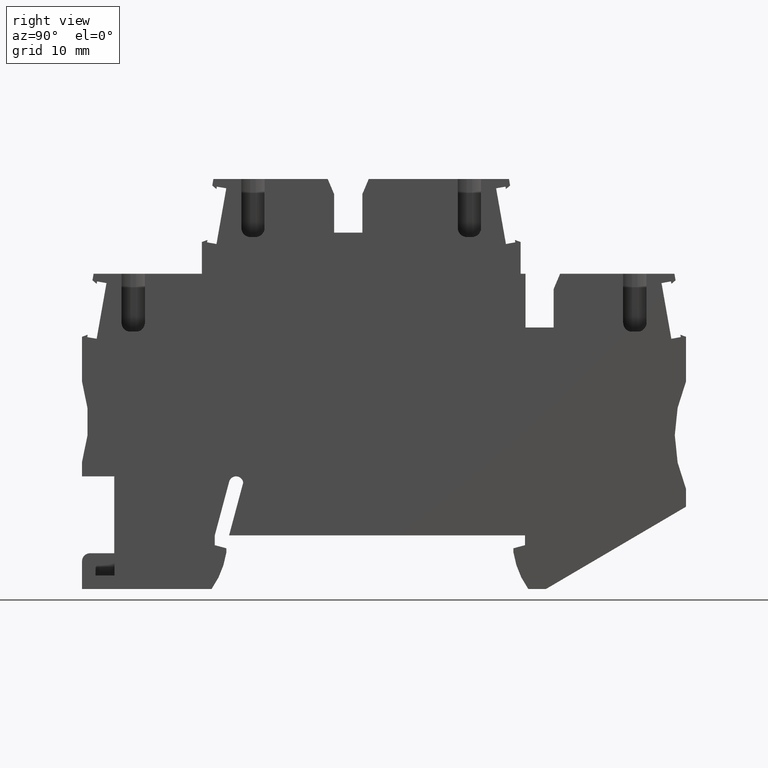
[diagram: clean part render]
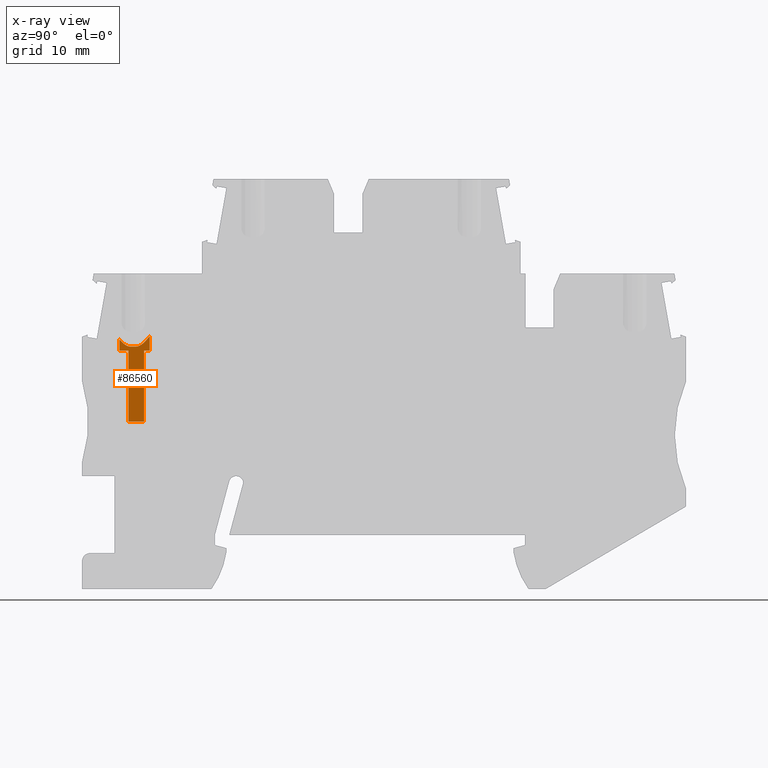
[diagram: x-ray — body ghosted, one internal face saturated and labeled with its STEP entity id]
A machine part, right view, then the same camera in x-ray: the body is ghosted and one INTERNAL B-rep face — a face not visible from any outside direction — is saturated and labeled: STEP entity #86560.
In plain terms, the highlighted planar face has unit normal (-1, 0, 0).
Its self-contained STEP definition (entity closure, byte-faithful):
#77870=CARTESIAN_POINT('',(141.353036999972,25.2467138221637,51.27));
#77880=DIRECTION('',(0.,1.,0.));
#77890=DIRECTION('',(-1.,0.,0.));
#77900=AXIS2_PLACEMENT_3D('',#77870,#77880,#77890);
#77910=CONICAL_SURFACE('',#77900,2.4,0.523598775598298);
#78490=CARTESIAN_POINT('',(142.903036999926,24.7660671728631,
52.7199999999985));
#78500=VERTEX_POINT('',#78490);
#78530=CARTESIAN_POINT('',(142.903036999971,-15.176449,52.72));
#78540=DIRECTION('',(0.,1.,0.));
#78550=VECTOR('',#78540,1.);
#78560=LINE('',#78530,#78550);
#78570=CARTESIAN_POINT('',(142.903036999971,23.1425686337345,52.72));
#78580=VERTEX_POINT('',#78570);
#78590=EDGE_CURVE('',#78580,#78500,#78560,.T.);
#78810=CARTESIAN_POINT('',(141.353036999972,23.6012655549726,
52.7199999999996));
#78820=VERTEX_POINT('',#78810);
#78850=CARTESIAN_POINT('',(140.662293295617,22.5967138221634,
52.7199999999996));
#78860=DIRECTION('',(1.15490950136632E-13,2.7755575615654E-17,-1.));
#78870=DIRECTION('',(1.,1.15504827924453E-13,1.15490950136632E-13));
#78880=AXIS2_PLACEMENT_3D('',#78850,#78860,#78870);
#78890=PLANE('',#78880);
#78900=CARTESIAN_POINT('',(142.903036999926,24.7660671728631,
52.7199999999985));
#78910=CARTESIAN_POINT('',(142.877242435365,24.7334404744309,
52.7199999999985));
#78920=CARTESIAN_POINT('',(142.851260178076,24.7009557849021,
52.7199999999998));
#78930=CARTESIAN_POINT('',(142.82507022727,24.6686388305445,
52.7199999999998));
#78940=CARTESIAN_POINT('',(142.798880271732,24.6363218703486,
52.7199999999998));
#78950=CARTESIAN_POINT('',(142.772482627496,24.6041725043834,
52.7199999999998));
#78960=CARTESIAN_POINT('',(142.74585250133,24.5722199252456,
52.7199999999998));
#78970=CARTESIAN_POINT('',(142.719222379629,24.5402673514641,
52.7199999999998));
#78980=CARTESIAN_POINT('',(142.692359762328,24.5085113563259,
52.7199999999787));
#78990=CARTESIAN_POINT('',(142.665234096887,24.4769859532502,
52.7199999999787));
#79000=CARTESIAN_POINT('',(142.638108454076,24.4454605764762,
52.7199999999787));
#79010=CARTESIAN_POINT('',(142.610719717258,24.4141654874476,
52.7199999999997));
#79020=CARTESIAN_POINT('',(142.583030467607,24.3831415148862,
52.7199999999997));
#79030=CARTESIAN_POINT('',(142.555343934938,24.3521205865229,
52.7199999999997));
#79040=CARTESIAN_POINT('',(142.527346929597,24.3213591344291,
52.7199999999902));
#79050=CARTESIAN_POINT('',(142.498993348531,24.2909085419971,
52.7199999999902));
#79060=CARTESIAN_POINT('',(142.470640964447,24.2604592350755,
52.7199999999902));
#79070=CARTESIAN_POINT('',(142.441937070612,24.2303259743099,
52.7199999999998));
#79080=CARTESIAN_POINT('',(142.412838258912,24.2005853720574,
52.7199999999998));
#79090=CARTESIAN_POINT('',(142.383739469789,24.1708447928784,
52.7199999999998));
#79100=CARTESIAN_POINT('',(142.354245482847,24.1414960143257,
52.7199999999811));
#79110=CARTESIAN_POINT('',(142.324298544293,24.1126294518984,
52.7199999999811));
#79120=CARTESIAN_POINT('',(142.294350319136,24.0837616492842,
52.7199999999811));
#79130=CARTESIAN_POINT('',(142.263954778927,24.0553804356153,
52.7199999999997));
#79140=CARTESIAN_POINT('',(142.233019860627,24.0275817854602,
52.7199999999996));
#79150=CARTESIAN_POINT('',(142.202078654113,23.9997774846084,
52.7199999999996));
#79160=CARTESIAN_POINT('',(142.170573808006,23.972534828086,
52.7199999999997));
#79170=CARTESIAN_POINT('',(142.13845753934,23.9460405200553,
52.7199999999997));
#79180=CARTESIAN_POINT('',(142.122399278341,23.9327932615476,
52.7199999999997));
#79190=CARTESIAN_POINT('',(142.106187573754,23.9197332458948,
52.7199999999997));
#79200=CARTESIAN_POINT('',(142.089813866493,23.9068862120461,
52.7199999999997));
#79210=CARTESIAN_POINT('',(142.073440164663,23.8940391824583,
52.7199999999997));
#79220=CARTESIAN_POINT('',(142.05690438942,23.8814050403408,
52.7199999999895));
#79230=CARTESIAN_POINT('',(142.040196289508,23.8690118586182,
52.7199999999895));
#79240=CARTESIAN_POINT('',(142.023488207738,23.8566186903513,
52.7199999999895));
#79250=CARTESIAN_POINT('',(142.006607698602,23.8444663655106,
52.7199999999997));
#79260=CARTESIAN_POINT('',(141.989542929492,23.8325859694042,
52.7199999999997));
#79270=CARTESIAN_POINT('',(141.972484375948,23.8207099005395,
52.7199999999997));
#79280=CARTESIAN_POINT('',(141.955219266554,23.8090896748171,
52.7199999999944));
#79290=CARTESIAN_POINT('',(141.937722437796,23.7977562824853,
52.7199999999944));
#79300=CARTESIAN_POINT('',(141.902734282217,23.7750930616462,
52.7199999999943));
#79310=CARTESIAN_POINT('',(141.866864481459,23.7536065855581,
52.7199999999997));
#79320=CARTESIAN_POINT('',(141.830157625348,23.733734446437,
52.7199999999997));
#79330=CARTESIAN_POINT('',(141.793450653236,23.7138622445155,
52.7199999999997));
#79340=CARTESIAN_POINT('',(141.755904712024,23.6956041821751,
52.7199999999965));
#79350=CARTESIAN_POINT('',(141.717556807524,23.6794104022776,
52.7199999999965));
#79360=CARTESIAN_POINT('',(141.698379475851,23.6713120852459,
52.7199999999965));
#79370=CARTESIAN_POINT('',(141.679016256602,23.6637354985019,
52.7199999999997));
#79380=CARTESIAN_POINT('',(141.659429804425,23.6567218892493,
52.7199999999997));
#79390=CARTESIAN_POINT('',(141.639833296826,23.6497046793041,
52.7199999999997));
#79400=CARTESIAN_POINT('',(141.619979603961,23.6432408802542,
52.7199999999991));
#79410=CARTESIAN_POINT('',(141.599918879029,23.6374088070471,
52.7199999999991));
#79420=CARTESIAN_POINT('',(141.579858243594,23.6315767598584,
52.7199999999991));
#79430=CARTESIAN_POINT('',(141.559591793839,23.6263771322948,
52.7199999999991));
#79440=CARTESIAN_POINT('',(141.539177783649,23.6218750528591,
52.7199999999991));
#79450=CARTESIAN_POINT('',(141.518763732204,23.6173729643251,
52.7199999999991));
#79460=CARTESIAN_POINT('',(141.498203932397,23.6135690676194,
52.7199999999996));
#79470=CARTESIAN_POINT('',(141.477560922382,23.6105097622531,
52.7199999999996));
#79480=CARTESIAN_POINT('',(141.436237981184,23.6043856797828,
52.7199999999996));
#79490=CARTESIAN_POINT('',(141.394771748339,23.6012655549726,
52.7199999999996));
#79500=CARTESIAN_POINT('',(141.353036999972,23.6012655549726,
52.7199999999996));
#79510=B_SPLINE_CURVE_WITH_KNOTS('',3,(#78900,#78910,#78920,#78930,
#78940,#78950,#78960,#78970,#78980,#78990,#79000,#79010,#79020,#79030,
#79040,#79050,#79060,#79070,#79080,#79090,#79100,#79110,#79120,#79130,
#79140,#79150,#79160,#79170,#79180,#79190,#79200,#79210,#79220,#79230,
#79240,#79250,#79260,#79270,#79280,#79290,#79300,#79310,#79320,#79330,
#79340,#79350,#79360,#79370,#79380,#79390,#79400,#79410,#79420,#79430,
#79440,#79450,#79460,#79470,#79480,#79490,#79500),.UNSPECIFIED.,.F.,.F.,
(4,3,3,3,3,3,3,3,3,3,3,3,3,3,3,3,3,3,3,3,4),(0.,0.124784969914576,
0.249573985055302,0.374350415393101,0.499108749997256,0.623887497249636,
0.748714454103033,0.873520853588684,0.998286597549574,1.12315986677815,
1.18560553519899,1.2480283586704,1.31042147404863,1.37286210591457,
1.49807013800749,1.62313897025373,1.6855450940174,1.74812110321655,
1.81082835355381,1.87349738778717,1.99847666332925),.UNSPECIFIED.);
#79520=SURFACE_CURVE('',#79510,(#77910,#78890),.CURVE_3D.);
#79530=EDGE_CURVE('',#78500,#78820,#79520,.T.);
#79830=CARTESIAN_POINT('',(140.753037000002,23.6012655549725,
52.7199999999996));
#79840=VERTEX_POINT('',#79830);
#79870=CARTESIAN_POINT('',(168.653843651947,23.6012655549781,
52.7200000000028));
#79880=DIRECTION('',(-1.,-2.0003619345105E-13,-1.15490950136632E-13));
#79890=VECTOR('',#79880,1.);
#79900=LINE('',#79870,#79890);
#79910=EDGE_CURVE('',#78820,#79840,#79900,.T.);
#80040=CARTESIAN_POINT('',(140.753036999972,25.2467138221637,51.27));
#80050=DIRECTION('',(-6.83720066269713E-15,1.,0.));
#80060=DIRECTION('',(-1.,0.,0.));
#80070=AXIS2_PLACEMENT_3D('',#80040,#80050,#80060);
#80080=CONICAL_SURFACE('',#80070,2.4,0.5235987755983);
#80140=CARTESIAN_POINT('',(140.753036999973,25.2467138221636,
51.2699999999995));
#80150=DIRECTION('',(-1.23069611928548E-13,1.,0.));
#80160=DIRECTION('',(-1.,-1.15504827924453E-13,-1.15490950136632E-13));
#80170=AXIS2_PLACEMENT_3D('',#80140,#80150,#80160);
#80180=CONICAL_SURFACE('',#80170,2.4,0.5235987755983);
#81500=CARTESIAN_POINT('',(139.528036999955,24.3775532804703,52.72));
#81510=VERTEX_POINT('',#81500);
#81540=CARTESIAN_POINT('',(140.662293295616,22.5967138221634,52.72));
#81550=DIRECTION('',(0.,0.,-1.));
#81560=DIRECTION('',(1.,0.,0.));
#81570=AXIS2_PLACEMENT_3D('',#81540,#81550,#81560);
#81580=PLANE('',#81570);
#81590=CARTESIAN_POINT('',(139.528036999955,24.3775532804703,52.72));
#81600=CARTESIAN_POINT('',(139.56299542891,24.3384773832509,52.72));
#81610=CARTESIAN_POINT('',(139.598618583679,24.2996311970381,52.72));
#81620=CARTESIAN_POINT('',(139.634905704064,24.2612509779603,52.72));
#81630=CARTESIAN_POINT('',(139.671193019056,24.2228705530509,52.72));
#81640=CARTESIAN_POINT('',(139.70814396364,24.1849553311735,52.72));
#81650=CARTESIAN_POINT('',(139.745788595624,24.1477565738196,52.72));
#81660=CARTESIAN_POINT('',(139.764611118578,24.1291569906317,52.72));
#81670=CARTESIAN_POINT('',(139.783607856216,24.1107365426771,52.72));
#81680=CARTESIAN_POINT('',(139.802786872793,24.0925282881172,52.72));
#81690=CARTESIAN_POINT('',(139.821965919563,24.0743200048921,52.72));
#81700=CARTESIAN_POINT('',(139.841327278906,24.0563238100811,52.72));
#81710=CARTESIAN_POINT('',(139.860882450134,24.0385745518797,52.72));
#81720=CARTESIAN_POINT('',(139.880437646268,24.020825271073,52.72));
#81730=CARTESIAN_POINT('',(139.900186722214,24.0033227750587,52.72));
#81740=CARTESIAN_POINT('',(139.920145035972,23.9861045520467,52.72));
#81750=CARTESIAN_POINT('',(139.940103360489,23.9688863197524,52.72));
#81760=CARTESIAN_POINT('',(139.960271043596,23.9519521480022,52.72));
#81770=CARTESIAN_POINT('',(139.980667596537,23.935343409818,52.72));
#81780=CARTESIAN_POINT('',(140.001064133537,23.9187346846146,52.72));
#81790=CARTESIAN_POINT('',(140.021689740846,23.9024511049015,52.72));
#81800=CARTESIAN_POINT('',(140.042568134802,23.8865396425808,52.72));
#81810=CARTESIAN_POINT('',(140.063446469083,23.8706282257385,52.72));
#81820=CARTESIAN_POINT('',(140.084577906455,23.8550885501831,52.72));
#81830=CARTESIAN_POINT('',(140.10599000636,23.8399754116625,52.72));
#81840=CARTESIAN_POINT('',(140.12740198132,23.8248623613301,52.72));
#81850=CARTESIAN_POINT('',(140.149095095684,23.8101753814838,52.72));
#81860=CARTESIAN_POINT('',(140.171099739055,23.7959797797179,52.72));
#81870=CARTESIAN_POINT('',(140.193104167638,23.7817843165149,52.72));
#81880=CARTESIAN_POINT('',(140.215420806813,23.7680796953624,52.72));
#81890=CARTESIAN_POINT('',(140.23808092035,23.7549446548214,52.72));
#81900=CARTESIAN_POINT('',(140.249410945933,23.7483771526275,52.72));
#81910=CARTESIAN_POINT('',(140.260826896511,23.7419522377117,52.72));
#81920=CARTESIAN_POINT('',(140.272332577274,23.7356811912088,52.72));
#81930=CARTESIAN_POINT('',(140.283837561001,23.729410524618,52.72));
#81940=CARTESIAN_POINT('',(140.295454156748,23.7232818782372,
52.7199999999976));
#81950=CARTESIAN_POINT('',(140.307176434849,23.7173144682101,
52.7199999999976));
#81960=CARTESIAN_POINT('',(140.330620961442,23.7053796632287,
52.7199999999976));
#81970=CARTESIAN_POINT('',(140.354488445455,23.6940903983034,52.72));
#81980=CARTESIAN_POINT('',(140.37872474386,23.6835977740435,52.72));
#81990=CARTESIAN_POINT('',(140.402960985149,23.6731051745109,52.72));
#82000=CARTESIAN_POINT('',(140.427565119087,23.6634101910363,52.72));
#82010=CARTESIAN_POINT('',(140.452473794875,23.6546534242731,52.72));
#82020=CARTESIAN_POINT('',(140.477382573851,23.6458966212334,52.72));
#82030=CARTESIAN_POINT('',(140.502593858912,23.6380793290506,
52.7199999999918));
#82040=CARTESIAN_POINT('',(140.528037000001,23.6313219349273,
52.7199999999918));
#82050=B_SPLINE_CURVE_WITH_KNOTS('',3,(#81590,#81600,#81610,#81620,
#81630,#81640,#81650,#81660,#81670,#81680,#81690,#81700,#81710,#81720,
#81730,#81740,#81750,#81760,#81770,#81780,#81790,#81800,#81810,#81820,
#81830,#81840,#81850,#81860,#81870,#81880,#81890,#81900,#81910,#81920,
#81930,#81940,#81950,#81960,#81970,#81980,#81990,#82000,#82010,#82020,
#82030,#82040),.UNSPECIFIED.,.F.,.F.,(4,3,3,3,3,3,3,3,3,3,3,3,3,3,3,4),(
0.,0.157951643117943,0.316628731322757,0.395996087019793,
0.475282686892775,0.554437513087954,0.633431780221948,0.712260842144102,
0.79094534938581,0.869531526476415,0.948090585903783,0.987388754306402,
1.02677826302312,1.10588578591274,1.1851278135764,1.26423132845481),
.UNSPECIFIED.);
#82060=SURFACE_CURVE('',#82050,(#81580,#80180),.CURVE_3D.);
#82070=CARTESIAN_POINT('',(140.528036999976,23.6313219349698,
52.7199999999995));
#82080=VERTEX_POINT('',#82070);
#82090=EDGE_CURVE('',#81510,#82080,#82060,.T.);
#82110=CARTESIAN_POINT('',(140.753037000002,23.6012655549725,
52.7199999999996));
#82120=CARTESIAN_POINT('',(140.734050360493,23.6012655549718,
52.7199999999996));
#82130=CARTESIAN_POINT('',(140.715039004023,23.6019131624364,
52.7199999999996));
#82140=CARTESIAN_POINT('',(140.696066304548,23.6032033068275,
52.7199999999996));
#82150=CARTESIAN_POINT('',(140.677093616362,23.6044934504508,
52.7199999999996));
#82160=CARTESIAN_POINT('',(140.658161532235,23.6064259272489,
52.7199999999995));
#82170=CARTESIAN_POINT('',(140.63933197911,23.6089755802188,
52.7199999999995));
#82180=CARTESIAN_POINT('',(140.620502302347,23.6115252499302,
52.7199999999995));
#82190=CARTESIAN_POINT('',(140.601776817164,23.6146916467309,
52.7199999999995));
#82200=CARTESIAN_POINT('',(140.583210626671,23.6184324261081,
52.7199999999995));
#82210=CARTESIAN_POINT('',(140.564644185165,23.6221732560604,
52.7199999999995));
#82220=CARTESIAN_POINT('',(140.546238271794,23.6264878947536,
52.7199999999995));
#82230=CARTESIAN_POINT('',(140.528036999976,23.6313219349698,
52.7199999999995));
#82240=B_SPLINE_CURVE_WITH_KNOTS('',3,(#82110,#82120,#82130,#82140,
#82150,#82160,#82170,#82180,#82190,#82200,#82210,#82220,#82230),
.UNSPECIFIED.,.F.,.F.,(4,3,3,3,4),(0.,0.0570145908856953,
0.114052372408459,0.170974705667016,0.227642657626031),.UNSPECIFIED.);
#82250=SURFACE_CURVE('',#82240,(#80080,#78890),.CURVE_3D.);
#82260=EDGE_CURVE('',#79840,#82080,#82250,.T.);
#83270=CARTESIAN_POINT('',(142.278036999978,31.7467138221623,
52.7199999999997));
#83280=DIRECTION('',(1.12898795394119E-13,-1.,-2.77555756026152E-17));
#83290=VECTOR('',#83280,1.);
#83300=LINE('',#83270,#83290);
#83310=CARTESIAN_POINT('',(142.278036999979,23.1425686337345,
52.7199999999997));
#83320=VERTEX_POINT('',#83310);
#83330=CARTESIAN_POINT('',(142.27803699998,15.1967138221472,
52.7199999999997));
#83340=VERTEX_POINT('',#83330);
#83350=EDGE_CURVE('',#83320,#83340,#83300,.T.);
#84030=CARTESIAN_POINT('',(139.528036999971,23.1425686337345,52.72));
#84040=VERTEX_POINT('',#84030);
#84070=CARTESIAN_POINT('',(139.528036999971,2.99671382217016,52.72));
#84080=DIRECTION('',(0.,-1.,0.));
#84090=VECTOR('',#84080,1.);
#84100=LINE('',#84070,#84090);
#84110=EDGE_CURVE('',#81510,#84040,#84100,.T.);
#84760=CARTESIAN_POINT('',(142.885813424512,15.1967138221472,
52.7199999999998));
#84770=DIRECTION('',(1.,1.33538312406055E-26,1.15490950136632E-13));
#84780=VECTOR('',#84770,1.);
#84790=LINE('',#84760,#84780);
#84800=CARTESIAN_POINT('',(140.528036999972,15.1967138221472,
52.7199999999995));
#84810=VERTEX_POINT('',#84800);
#84820=EDGE_CURVE('',#84810,#83340,#84790,.T.);
#85150=CARTESIAN_POINT('',(140.528036999972,-4.05162234519416,
52.7199999999995));
#85160=DIRECTION('',(-1.73472347596343E-15,-1.,-2.77555756158543E-17));
#85170=VECTOR('',#85160,1.);
#85180=LINE('',#85150,#85170);
#85190=CARTESIAN_POINT('',(140.528036999972,23.1425686337345,
52.7199999999995));
#85200=VERTEX_POINT('',#85190);
#85210=EDGE_CURVE('',#85200,#84810,#85180,.T.);
#85460=CARTESIAN_POINT('',(168.653843651947,23.1425686337345,52.72));
#85470=DIRECTION('',(-1.,0.,0.));
#85480=VECTOR('',#85470,1.);
#85490=LINE('',#85460,#85480);
#85500=EDGE_CURVE('',#85200,#84040,#85490,.T.);
#86110=EDGE_CURVE('',#78580,#83320,#85490,.T.);
#86430=ORIENTED_EDGE('',*,*,#85500,.T.);
#86440=ORIENTED_EDGE('',*,*,#85210,.F.);
#86450=ORIENTED_EDGE('',*,*,#84820,.F.);
#86460=ORIENTED_EDGE('',*,*,#83350,.T.);
#86470=ORIENTED_EDGE('',*,*,#86110,.T.);
#86480=ORIENTED_EDGE('',*,*,#78590,.F.);
#86490=ORIENTED_EDGE('',*,*,#79530,.F.);
#86500=ORIENTED_EDGE('',*,*,#79910,.F.);
#86510=ORIENTED_EDGE('',*,*,#82260,.F.);
#86520=ORIENTED_EDGE('',*,*,#82090,.T.);
#86530=ORIENTED_EDGE('',*,*,#84110,.F.);
#86540=EDGE_LOOP('',(#86530,#86520,#86510,#86500,#86490,#86480,#86470,
#86460,#86450,#86440,#86430));
#86550=FACE_OUTER_BOUND('',#86540,.T.);
#86560=ADVANCED_FACE('',(#86550),#81580,.T.);